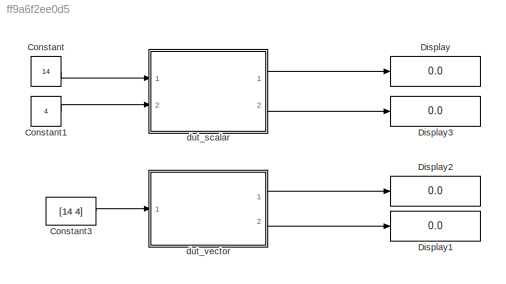
MODEL slx_ff9a6f2ee0d5
KIND model
CONFIG AbsTol = auto
CONFIG FixedStep = auto
CONFIG MaxStep = auto
CONFIG MinStep = auto
CONFIG RelTol = 1e-3
CONFIG SampleTimeConstraint = Unconstrained
CONFIG Solver = FixedStepDiscrete
CONFIG SolverMode = SingleTasking
CONFIG SolverName = FixedStepDiscrete
CONFIG StartTime = 0.0
CONFIG StopTime = 3
BLOCK [Constant] Constant
  OutDataTypeStr = int8
  SampleTime = 1
  Value = 14
BLOCK [Constant] Constant1
  OutDataTypeStr = int8
  SampleTime = 1
  Value = 4
BLOCK [Constant] Constant3
  OutDataTypeStr = int8
  SampleTime = 1
  Value = [14 4]
BLOCK [Display] Display
  Decimation = 1
  Ports = [1]
BLOCK [Display] Display1
  Decimation = 1
  Ports = [1]
BLOCK [Display] Display2
  Decimation = 1
  Ports = [1]
BLOCK [Display] Display3
  Decimation = 1
  Ports = [1]
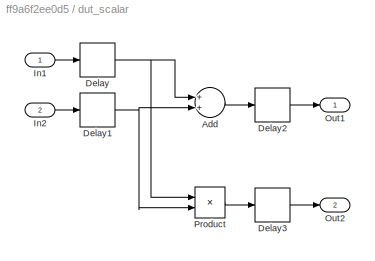
BLOCK [SubSystem] dut_scalar
  Ports = [2, 2]
  RequestExecContextInheritance = off
  Variant = off
BLOCK [Sum] dut_scalar/Add
  InputSameDT = off
  OutDataTypeStr = Inherit: Inherit via internal rule
  Ports = [2, 1]
  SaturateOnIntegerOverflow = off
BLOCK [Delay] dut_scalar/Delay
  DelayLength = 1
  InputPortMap = u0
  Ports = [1, 1]
BLOCK [Delay] dut_scalar/Delay1
  DelayLength = 1
  InputPortMap = u0
  Ports = [1, 1]
BLOCK [Delay] dut_scalar/Delay2
  DelayLength = 1
  InputPortMap = u0
  Ports = [1, 1]
BLOCK [Delay] dut_scalar/Delay3
  DelayLength = 1
  InputPortMap = u0
  Ports = [1, 1]
BLOCK [Inport] dut_scalar/In1
  IconDisplay = Port number
BLOCK [Inport] dut_scalar/In2
  IconDisplay = Port number
  Port = 2
BLOCK [Outport] dut_scalar/Out1
  IconDisplay = Port number
BLOCK [Outport] dut_scalar/Out2
  IconDisplay = Port number
  Port = 2
BLOCK [Product] dut_scalar/Product
  InputSameDT = off
  OutDataTypeStr = Inherit: Inherit via internal rule
  Ports = [2, 1]
  SaturateOnIntegerOverflow = off
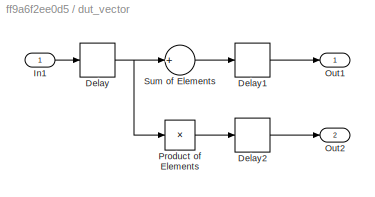
BLOCK [SubSystem] dut_vector
  Ports = [1, 2]
  RequestExecContextInheritance = off
  Variant = off
BLOCK [Delay] dut_vector/Delay
  DelayLength = 1
  InputPortMap = u0
  Ports = [1, 1]
BLOCK [Delay] dut_vector/Delay1
  DelayLength = 1
  InputPortMap = u0
  Ports = [1, 1]
BLOCK [Delay] dut_vector/Delay2
  DelayLength = 1
  InputPortMap = u0
  Ports = [1, 1]
BLOCK [Inport] dut_vector/In1
  IconDisplay = Port number
BLOCK [Outport] dut_vector/Out1
  IconDisplay = Port number
BLOCK [Outport] dut_vector/Out2
  IconDisplay = Port number
  Port = 2
BLOCK [Product] dut_vector/Product of Elements
  InputSameDT = off
  Inputs = *
  OutDataTypeStr = Inherit: Inherit via internal rule
  Ports = [1, 1]
  RndMeth = Floor
  SaturateOnIntegerOverflow = off
BLOCK [Sum] dut_vector/Sum of Elements
  InputSameDT = off
  Inputs = +
  OutDataTypeStr = Inherit: Inherit via internal rule
  Ports = [1, 1]
  SaturateOnIntegerOverflow = off
LINE Constant1:1 -> dut_scalar:2
LINE Constant3:1 -> dut_vector:1
LINE Constant:1 -> dut_scalar:1
LINE dut_scalar/Add:1 -> dut_scalar/Delay2:1
NET dut_scalar/Delay1:1 -> dut_scalar/Add:2, dut_scalar/Product:2
LINE dut_scalar/Delay2:1 -> dut_scalar/Out1:1
LINE dut_scalar/Delay3:1 -> dut_scalar/Out2:1
NET dut_scalar/Delay:1 -> dut_scalar/Add:1, dut_scalar/Product:1
LINE dut_scalar/In1:1 -> dut_scalar/Delay:1
LINE dut_scalar/In2:1 -> dut_scalar/Delay1:1
LINE dut_scalar/Product:1 -> dut_scalar/Delay3:1
LINE dut_scalar:1 -> Display:1
LINE dut_scalar:2 -> Display3:1
LINE dut_vector/Delay1:1 -> dut_vector/Out1:1
LINE dut_vector/Delay2:1 -> dut_vector/Out2:1
NET dut_vector/Delay:1 -> dut_vector/Product of Elements:1, dut_vector/Sum of Elements:1
LINE dut_vector/In1:1 -> dut_vector/Delay:1
LINE dut_vector/Product of Elements:1 -> dut_vector/Delay2:1
LINE dut_vector/Sum of Elements:1 -> dut_vector/Delay1:1
LINE dut_vector:1 -> Display2:1
LINE dut_vector:2 -> Display1:1
note: NET lines group one-source signal fan-out (src -> all destinations, sorted); 1:1 wires keep LINE
